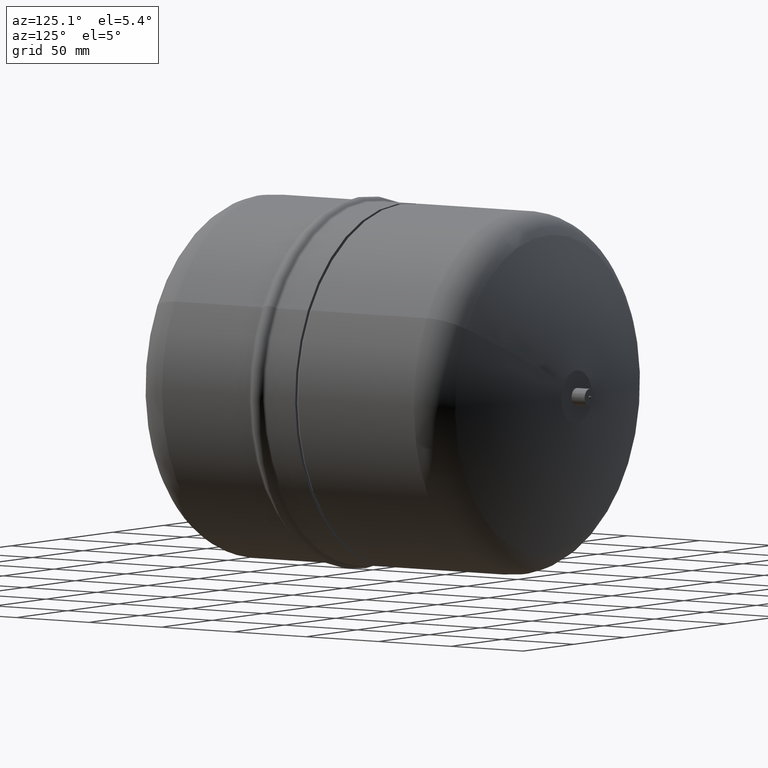
[diagram: clean part render]
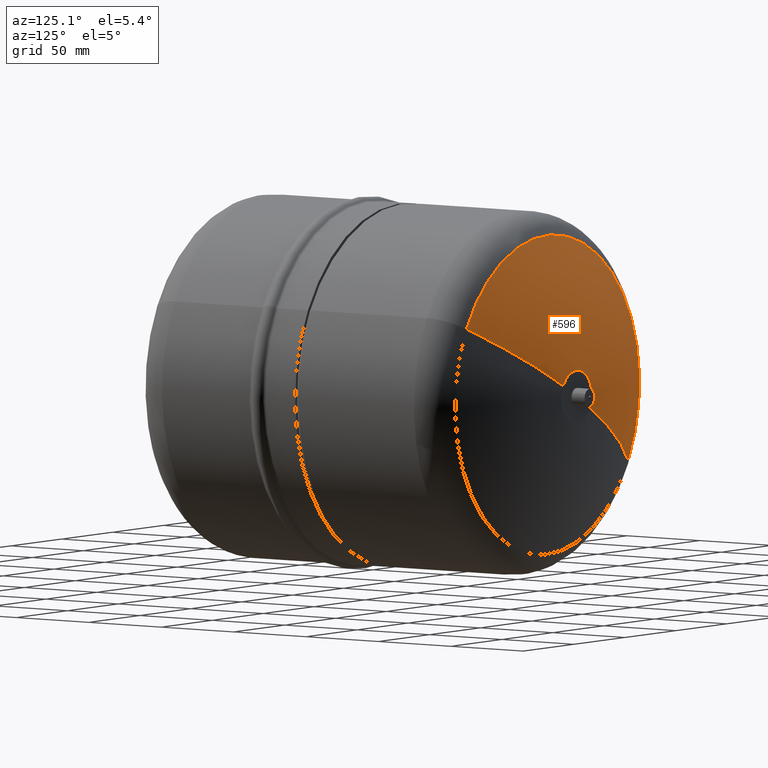
[diagram: same view with one face highlighted and labeled with its STEP entity id]
A machine part, auxiliary view. The second image highlights one B-rep face of the part: STEP entity #596.
In plain terms, the highlighted spherical surface has radius 208 mm.
Its self-contained STEP definition (entity closure, byte-faithful):
#537=AXIS2_PLACEMENT_3D('Circle Axis2P3D',#535,#536,$) ;
#569=AXIS2_PLACEMENT_3D('Sphere Axis2P3D',#566,#567,#568) ;
#573=AXIS2_PLACEMENT_3D('Circle Axis2P3D',#571,#572,$) ;
#580=AXIS2_PLACEMENT_3D('Circle Axis2P3D',#578,#579,$) ;
#587=AXIS2_PLACEMENT_3D('Circle Axis2P3D',#585,#586,$) ;
#532=CARTESIAN_POINT('Vertex',(79.4919946383,255.782449305,43.4266745936)) ;
#535=CARTESIAN_POINT('Axis2P3D Location',(0.,255.782449305,0.)) ;
#539=CARTESIAN_POINT('Vertex',(-79.4919946383,255.782449305,-43.4266745936)) ;
#566=CARTESIAN_POINT('Axis2P3D Location',(-7.1054273576E-015,68.5415704292,0.)) ;
#571=CARTESIAN_POINT('Axis2P3D Location',(-7.1054273576E-015,68.5415704292,0.)) ;
#575=CARTESIAN_POINT('Vertex',(13.1637384284,276.,7.19138307906)) ;
#578=CARTESIAN_POINT('Axis2P3D Location',(-7.1054273576E-015,276.,0.)) ;
#582=CARTESIAN_POINT('Vertex',(-13.1637384284,276.,-7.19138307906)) ;
#585=CARTESIAN_POINT('Axis2P3D Location',(-7.1054273576E-015,68.5415704292,0.)) ;
#536=DIRECTION('Axis2P3D Direction',(0.,-1.,0.)) ;
#567=DIRECTION('Axis2P3D Direction',(0.,-1.,0.)) ;
#568=DIRECTION('Axis2P3D XDirection',(0.87758256189,0.,0.479425538604)) ;
#572=DIRECTION('Axis2P3D Direction',(0.479425538604,0.,-0.87758256189)) ;
#579=DIRECTION('Axis2P3D Direction',(0.,-1.,0.)) ;
#586=DIRECTION('Axis2P3D Direction',(-0.479425538604,0.,0.87758256189)) ;
#591=ORIENTED_EDGE('',*,*,#541,.F.) ;
#592=ORIENTED_EDGE('',*,*,#577,.T.) ;
#593=ORIENTED_EDGE('',*,*,#584,.T.) ;
#594=ORIENTED_EDGE('',*,*,#589,.F.) ;
#596=ADVANCED_FACE('Hauptk\X2\00F6\X0\rper',(#595),#570,.T.) ;
#538=CIRCLE('generated circle',#537,90.5806451613) ;
#574=CIRCLE('generated circle',#573,208.) ;
#581=CIRCLE('generated circle',#580,15.) ;
#588=CIRCLE('generated circle',#587,208.) ;
#541=EDGE_CURVE('',#533,#540,#538,.T.) ;
#577=EDGE_CURVE('',#533,#576,#574,.F.) ;
#584=EDGE_CURVE('',#576,#583,#581,.T.) ;
#589=EDGE_CURVE('',#540,#583,#588,.F.) ;
#590=EDGE_LOOP('',(#591,#592,#593,#594)) ;
#595=FACE_OUTER_BOUND('',#590,.T.) ;
#570=SPHERICAL_SURFACE('',#569,208.) ;
#533=VERTEX_POINT('',#532) ;
#540=VERTEX_POINT('',#539) ;
#576=VERTEX_POINT('',#575) ;
#583=VERTEX_POINT('',#582) ;